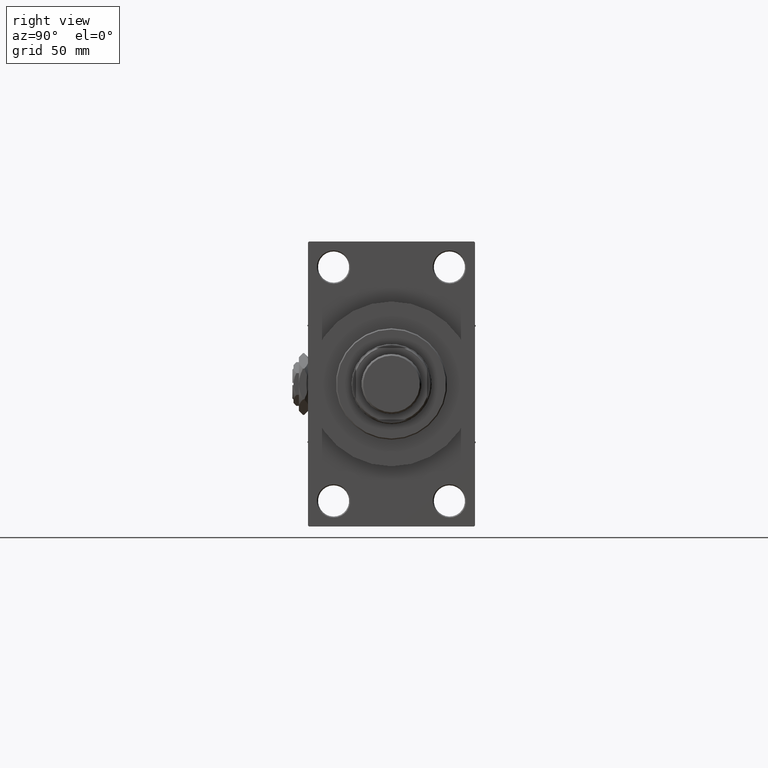
[diagram: clean part render]
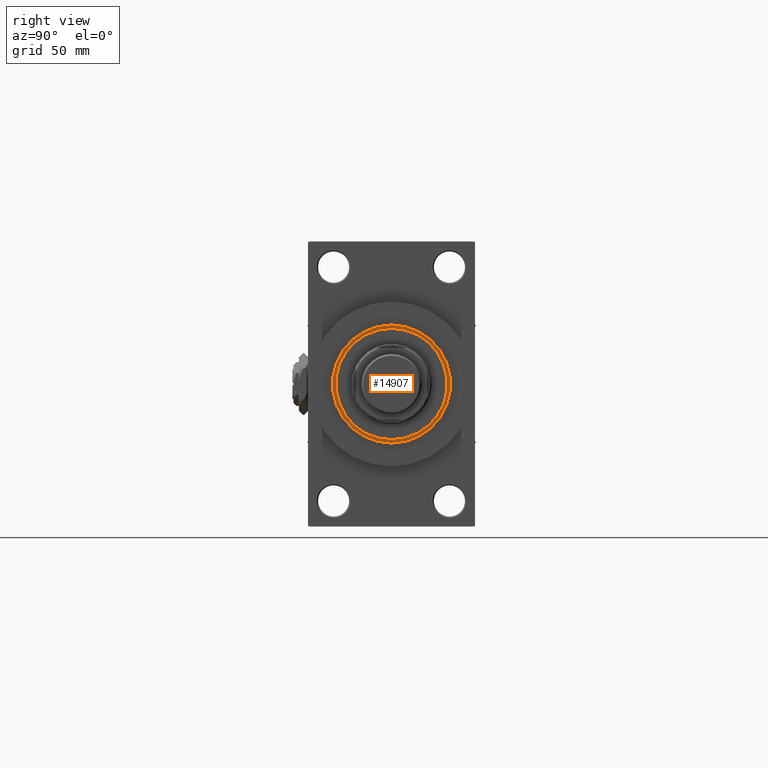
[diagram: same view with one face highlighted and labeled with its STEP entity id]
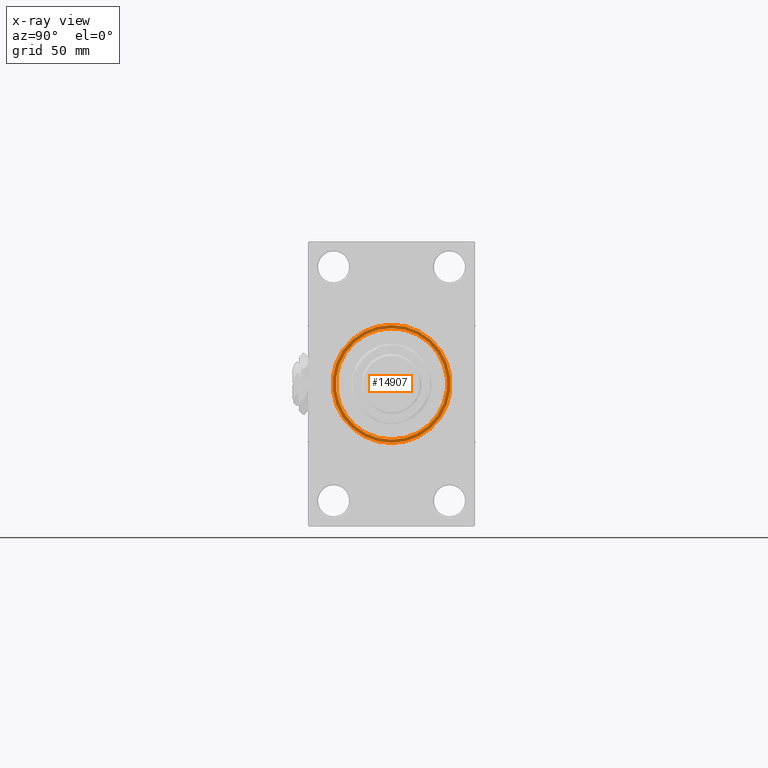
[diagram: x-ray of the same camera — body ghosted, the highlighted face saturated]
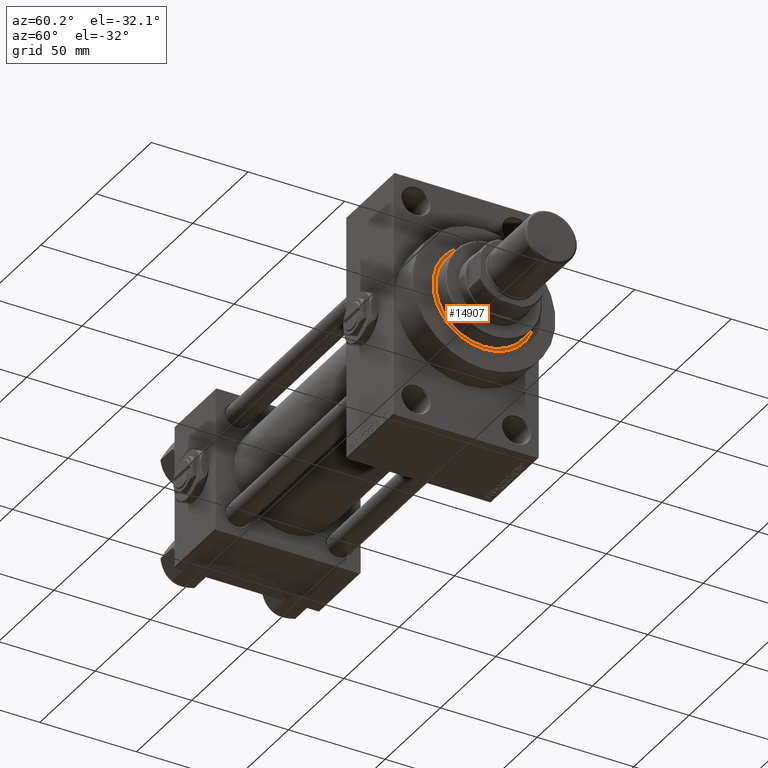
[diagram: same view with one face highlighted and labeled with its STEP entity id]
A machine part, right view. The second image highlights one B-rep face of the part: STEP entity #14907.
The next image is the same camera in x-ray: the body ghosted, the highlighted face saturated — about 0% of this face is hidden behind the body in this view.
A second angle (auxiliary view) of the same face is appended — the face is thin or edge-on in the first view.
In plain terms, the highlighted planar face has unit normal (1, -0, -0).
Its self-contained STEP definition (entity closure, byte-faithful):
#1474 = CARTESIAN_POINT ( 'NONE',  ( 25.00000000000000000, 3.061616997868383043E-15, 43.25999999999999801 ) ) ;
#1914 = CARTESIAN_POINT ( 'NONE',  ( 26.50000000000000355, 3.245314017740486554E-15, 43.25999999999999801 ) ) ;
#2520 = DIRECTION ( 'NONE',  ( 0.000000000000000000, 0.000000000000000000, 1.000000000000000000 ) ) ;
#2757 = CARTESIAN_POINT ( 'NONE',  ( 0.000000000000000000, 0.000000000000000000, 43.25999999999999801 ) ) ;
#3456 = CIRCLE ( 'NONE', #28413, 26.50000000000000355 ) ;
#4482 = DIRECTION ( 'NONE',  ( 0.000000000000000000, 0.000000000000000000, 1.000000000000000000 ) ) ;
#4575 = DIRECTION ( 'NONE',  ( 1.000000000000000000, 0.000000000000000000, 0.000000000000000000 ) ) ;
#5793 = EDGE_CURVE ( 'NONE', #43474, #19731, #30531, .T. ) ;
#8845 = CIRCLE ( 'NONE', #15240, 26.50000000000000355 ) ;
#11346 = CARTESIAN_POINT ( 'NONE',  ( 0.000000000000000000, 0.000000000000000000, 43.25999999999999801 ) ) ;
#11353 = ORIENTED_EDGE ( 'NONE', *, *, #29748, .T. ) ;
#12288 = FACE_OUTER_BOUND ( 'NONE', #18822, .T. ) ;
#14349 = CARTESIAN_POINT ( 'NONE',  ( 0.000000000000000000, 0.000000000000000000, 43.25999999999999801 ) ) ;
#14907 = ADVANCED_FACE ( 'NONE', ( #46222, #12288 ), #16321, .T. ) ;
#15240 = AXIS2_PLACEMENT_3D ( 'NONE', #38779, #19426, #4575 ) ;
#16321 = PLANE ( 'NONE',  #25932 ) ;
#17595 = ORIENTED_EDGE ( 'NONE', *, *, #5793, .F. ) ;
#18822 = EDGE_LOOP ( 'NONE', ( #11353, #26501 ) ) ;
#18871 = DIRECTION ( 'NONE',  ( 0.000000000000000000, 0.000000000000000000, 1.000000000000000000 ) ) ;
#19426 = DIRECTION ( 'NONE',  ( 0.000000000000000000, 0.000000000000000000, 1.000000000000000000 ) ) ;
#19731 = VERTEX_POINT ( 'NONE', #1474 ) ;
#20457 = AXIS2_PLACEMENT_3D ( 'NONE', #11346, #38255, #42034 ) ;
#22391 = DIRECTION ( 'NONE',  ( 1.000000000000000000, 0.000000000000000000, 0.000000000000000000 ) ) ;
#25219 = CARTESIAN_POINT ( 'NONE',  ( -26.50000000000000355, 0.000000000000000000, 43.25999999999999801 ) ) ;
#25932 = AXIS2_PLACEMENT_3D ( 'NONE', #31660, #4482, #27890 ) ;
#26501 = ORIENTED_EDGE ( 'NONE', *, *, #36325, .T. ) ;
#27890 = DIRECTION ( 'NONE',  ( 1.000000000000000000, 0.000000000000000000, -0.000000000000000000 ) ) ;
#28413 = AXIS2_PLACEMENT_3D ( 'NONE', #2757, #2520, #41482 ) ;
#28510 = ORIENTED_EDGE ( 'NONE', *, *, #41241, .F. ) ;
#29748 = EDGE_CURVE ( 'NONE', #39649, #35277, #8845, .T. ) ;
#30531 = CIRCLE ( 'NONE', #37743, 25.00000000000000000 ) ;
#31660 = CARTESIAN_POINT ( 'NONE',  ( 0.000000000000000000, 0.000000000000000000, 43.25999999999999801 ) ) ;
#35277 = VERTEX_POINT ( 'NONE', #1914 ) ;
#36325 = EDGE_CURVE ( 'NONE', #35277, #39649, #3456, .T. ) ;
#37743 = AXIS2_PLACEMENT_3D ( 'NONE', #14349, #18871, #22391 ) ;
#38027 = CIRCLE ( 'NONE', #20457, 25.00000000000000000 ) ;
#38255 = DIRECTION ( 'NONE',  ( 0.000000000000000000, 0.000000000000000000, 1.000000000000000000 ) ) ;
#38779 = CARTESIAN_POINT ( 'NONE',  ( 0.000000000000000000, 0.000000000000000000, 43.25999999999999801 ) ) ;
#38944 = CARTESIAN_POINT ( 'NONE',  ( -25.00000000000000000, 0.000000000000000000, 43.25999999999999801 ) ) ;
#39649 = VERTEX_POINT ( 'NONE', #25219 ) ;
#41241 = EDGE_CURVE ( 'NONE', #19731, #43474, #38027, .T. ) ;
#41482 = DIRECTION ( 'NONE',  ( 1.000000000000000000, 0.000000000000000000, 0.000000000000000000 ) ) ;
#41630 = EDGE_LOOP ( 'NONE', ( #17595, #28510 ) ) ;
#42034 = DIRECTION ( 'NONE',  ( 1.000000000000000000, 0.000000000000000000, 0.000000000000000000 ) ) ;
#43474 = VERTEX_POINT ( 'NONE', #38944 ) ;
#46222 = FACE_BOUND ( 'NONE', #41630, .T. ) ;